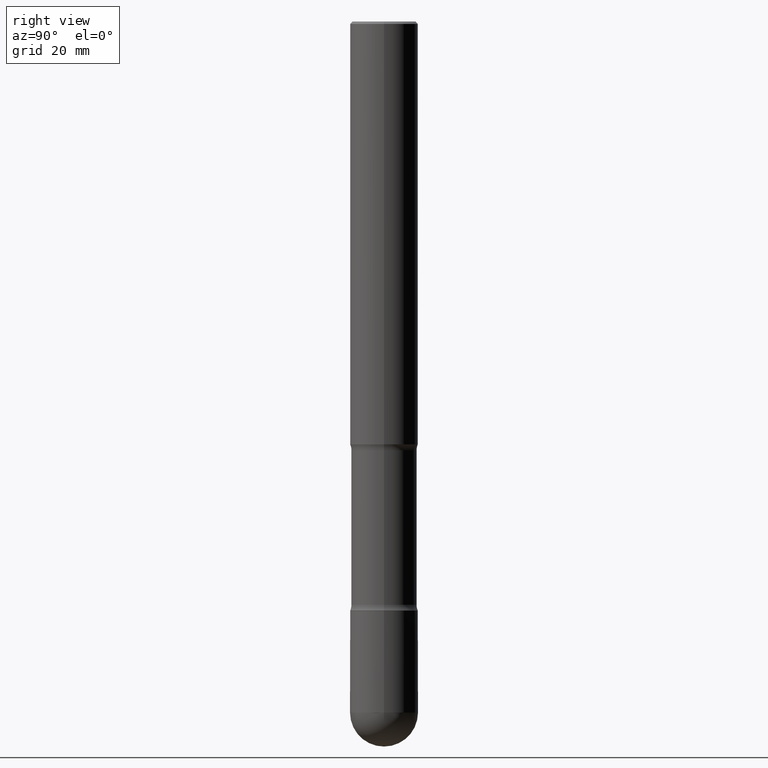
[diagram: clean part render]
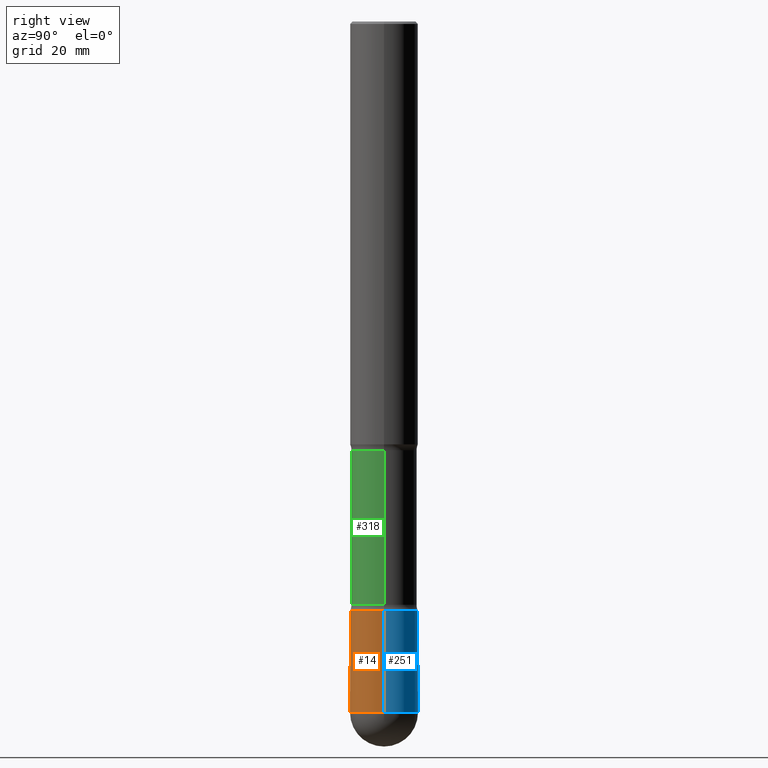
[diagram: same view with three faces highlighted in distinct colors, each labeled with its STEP entity id]
A machine part, right view with three faces highlighted in distinct colors.
Their STEP definitions:

[orange] entity #14 — the highlighted cylindrical surface (edge-blend (fillet) strip) has radius 7.1437 mm, axis along (-0, 0, 1).
#8 = ORIENTED_EDGE ( 'NONE', *, *, #363, .F. ) ;
#14 = ADVANCED_FACE ( 'NONE', ( #508 ), #115, .T. ) ;
#45 = CARTESIAN_POINT ( 'NONE',  ( 0.2812499999999991118, -1.898492977995959205E-14, -4.875000000000000888 ) ) ;
#75 = DIRECTION ( 'NONE',  ( 1.000000000000000000, -6.982962677686267499E-15, 4.876176775795935232E-29 ) ) ;
#77 = CARTESIAN_POINT ( 'NONE',  ( -0.2812499999999991673, -1.649553877235951378E-14, -4.875000000000000888 ) ) ;
#82 = CARTESIAN_POINT ( 'NONE',  ( 0.2812499999999989453, -2.045789846978405097E-14, -5.718750000000000000 ) ) ;
#95 = CARTESIAN_POINT ( 'NONE',  ( 1.192166043015254315E-28, -1.702097152686033664E-14, -4.875000000000000888 ) ) ;
#105 = VECTOR ( 'NONE', #163, 39.37007874015748143 ) ;
#115 = CYLINDRICAL_SURFACE ( 'NONE', #531, 0.2812499999999990008 ) ;
#116 = CARTESIAN_POINT ( 'NONE',  ( 1.398502473537124991E-28, -1.996690890650924185E-14, -5.718750000000000000 ) ) ;
#127 = EDGE_LOOP ( 'NONE', ( #8, #441, #555, #348, #498 ) ) ;
#145 = VERTEX_POINT ( 'NONE', #207 ) ;
#154 = CARTESIAN_POINT ( 'NONE',  ( 1.398502473537124991E-28, -1.996690890650924185E-14, -5.718750000000000000 ) ) ;
#158 = VERTEX_POINT ( 'NONE', #45 ) ;
#163 = DIRECTION ( 'NONE',  ( -2.445468806185136877E-29, 3.491481338843145188E-15, 1.000000000000000000 ) ) ;
#171 = AXIS2_PLACEMENT_3D ( 'NONE', #154, #514, #500 ) ;
#206 = CARTESIAN_POINT ( 'NONE',  ( -0.2812499999999990008, 1.998401444325274673E-15, -1.383450494134187504E-29 ) ) ;
#207 = CARTESIAN_POINT ( 'NONE',  ( -0.2812499999999989453, -1.649553877235951694E-14, -5.718750000000000000 ) ) ;
#221 = VERTEX_POINT ( 'NONE', #77 ) ;
#246 = CARTESIAN_POINT ( 'NONE',  ( -1.998401444325134650E-15, -0.2812500000000189848, -5.718749999999999112 ) ) ;
#253 = CARTESIAN_POINT ( 'NONE',  ( 0.2812499999999990008, -1.963958253099255807E-15, 1.371424718192601967E-29 ) ) ;
#267 = AXIS2_PLACEMENT_3D ( 'NONE', #95, #481, #306 ) ;
#279 = CARTESIAN_POINT ( 'NONE',  ( 0.000000000000000000, 0.000000000000000000, 0.000000000000000000 ) ) ;
#289 = DIRECTION ( 'NONE',  ( -2.445468806185136597E-29, 3.491481338843145583E-15, 1.000000000000000000 ) ) ;
#298 = CIRCLE ( 'NONE', #526, 0.2812499999999989453 ) ;
#300 = EDGE_CURVE ( 'NONE', #366, #401, #450, .T. ) ;
#303 = EDGE_CURVE ( 'NONE', #145, #366, #298, .T. ) ;
#306 = DIRECTION ( 'NONE',  ( 1.000000000000000000, -6.982962677686265133E-15, 0.000000000000000000 ) ) ;
#348 = ORIENTED_EDGE ( 'NONE', *, *, #404, .T. ) ;
#363 = EDGE_CURVE ( 'NONE', #145, #221, #384, .T. ) ;
#366 = VERTEX_POINT ( 'NONE', #246 ) ;
#384 = LINE ( 'NONE', #206, #416 ) ;
#385 = DIRECTION ( 'NONE',  ( -2.445468806185136877E-29, 3.491481338843145188E-15, 1.000000000000000000 ) ) ;
#401 = VERTEX_POINT ( 'NONE', #82 ) ;
#404 = EDGE_CURVE ( 'NONE', #401, #158, #478, .T. ) ;
#416 = VECTOR ( 'NONE', #385, 39.37007874015748143 ) ;
#441 = ORIENTED_EDGE ( 'NONE', *, *, #303, .T. ) ;
#450 = CIRCLE ( 'NONE', #171, 0.2812499999999989453 ) ;
#455 = DIRECTION ( 'NONE',  ( -2.445468806185136597E-29, 3.491481338843145583E-15, 1.000000000000000000 ) ) ;
#463 = DIRECTION ( 'NONE',  ( 1.000000000000000000, -6.982962677686261977E-15, 0.000000000000000000 ) ) ;
#478 = LINE ( 'NONE', #253, #105 ) ;
#481 = DIRECTION ( 'NONE',  ( -2.445468806185136597E-29, 3.491481338843145583E-15, 1.000000000000000000 ) ) ;
#498 = ORIENTED_EDGE ( 'NONE', *, *, #507, .F. ) ;
#500 = DIRECTION ( 'NONE',  ( 1.000000000000000000, -6.982962677686261977E-15, 0.000000000000000000 ) ) ;
#507 = EDGE_CURVE ( 'NONE', #221, #158, #516, .T. ) ;
#508 = FACE_OUTER_BOUND ( 'NONE', #127, .T. ) ;
#514 = DIRECTION ( 'NONE',  ( -2.445468806185136597E-29, 3.491481338843145583E-15, 1.000000000000000000 ) ) ;
#516 = CIRCLE ( 'NONE', #267, 0.2812499999999991118 ) ;
#526 = AXIS2_PLACEMENT_3D ( 'NONE', #116, #289, #463 ) ;
#531 = AXIS2_PLACEMENT_3D ( 'NONE', #279, #455, #75 ) ;
#555 = ORIENTED_EDGE ( 'NONE', *, *, #300, .T. ) ;

[blue] entity #251 — the highlighted cylindrical surface (edge-blend (fillet) strip) has radius 7.1437 mm, axis along (-0, 0, 1).
#22 = ORIENTED_EDGE ( 'NONE', *, *, #404, .F. ) ;
#45 = CARTESIAN_POINT ( 'NONE',  ( 0.2812499999999991118, -1.898492977995959205E-14, -4.875000000000000888 ) ) ;
#51 = DIRECTION ( 'NONE',  ( 1.000000000000000000, -6.982962677686261977E-15, 0.000000000000000000 ) ) ;
#56 = CARTESIAN_POINT ( 'NONE',  ( 1.963958253099395041E-15, 0.2812499999999790168, -5.718750000000001776 ) ) ;
#73 = CIRCLE ( 'NONE', #335, 0.2812499999999991118 ) ;
#77 = CARTESIAN_POINT ( 'NONE',  ( -0.2812499999999991673, -1.649553877235951378E-14, -4.875000000000000888 ) ) ;
#82 = CARTESIAN_POINT ( 'NONE',  ( 0.2812499999999989453, -2.045789846978405097E-14, -5.718750000000000000 ) ) ;
#86 = ORIENTED_EDGE ( 'NONE', *, *, #330, .T. ) ;
#105 = VECTOR ( 'NONE', #163, 39.37007874015748143 ) ;
#121 = DIRECTION ( 'NONE',  ( -2.445468806185136597E-29, 3.491481338843145583E-15, 1.000000000000000000 ) ) ;
#142 = ORIENTED_EDGE ( 'NONE', *, *, #363, .T. ) ;
#145 = VERTEX_POINT ( 'NONE', #207 ) ;
#150 = CARTESIAN_POINT ( 'NONE',  ( 0.000000000000000000, 0.000000000000000000, 0.000000000000000000 ) ) ;
#158 = VERTEX_POINT ( 'NONE', #45 ) ;
#163 = DIRECTION ( 'NONE',  ( -2.445468806185136877E-29, 3.491481338843145188E-15, 1.000000000000000000 ) ) ;
#201 = EDGE_CURVE ( 'NONE', #158, #221, #73, .T. ) ;
#206 = CARTESIAN_POINT ( 'NONE',  ( -0.2812499999999990008, 1.998401444325274673E-15, -1.383450494134187504E-29 ) ) ;
#207 = CARTESIAN_POINT ( 'NONE',  ( -0.2812499999999989453, -1.649553877235951694E-14, -5.718750000000000000 ) ) ;
#217 = ORIENTED_EDGE ( 'NONE', *, *, #201, .F. ) ;
#221 = VERTEX_POINT ( 'NONE', #77 ) ;
#222 = CIRCLE ( 'NONE', #491, 0.2812499999999989453 ) ;
#223 = ORIENTED_EDGE ( 'NONE', *, *, #536, .T. ) ;
#241 = DIRECTION ( 'NONE',  ( 1.000000000000000000, -6.982962677686267499E-15, 4.876176775795935232E-29 ) ) ;
#247 = DIRECTION ( 'NONE',  ( 1.000000000000000000, -6.982962677686261977E-15, 0.000000000000000000 ) ) ;
#251 = ADVANCED_FACE ( 'NONE', ( #368 ), #551, .T. ) ;
#253 = CARTESIAN_POINT ( 'NONE',  ( 0.2812499999999990008, -1.963958253099255807E-15, 1.371424718192601967E-29 ) ) ;
#257 = CARTESIAN_POINT ( 'NONE',  ( 1.398502473537124991E-28, -1.996690890650924185E-14, -5.718750000000000000 ) ) ;
#296 = DIRECTION ( 'NONE',  ( 1.000000000000000000, -6.982962677686265133E-15, 0.000000000000000000 ) ) ;
#330 = EDGE_CURVE ( 'NONE', #401, #446, #222, .T. ) ;
#335 = AXIS2_PLACEMENT_3D ( 'NONE', #566, #474, #296 ) ;
#363 = EDGE_CURVE ( 'NONE', #145, #221, #384, .T. ) ;
#368 = FACE_OUTER_BOUND ( 'NONE', #405, .T. ) ;
#384 = LINE ( 'NONE', #206, #416 ) ;
#385 = DIRECTION ( 'NONE',  ( -2.445468806185136877E-29, 3.491481338843145188E-15, 1.000000000000000000 ) ) ;
#401 = VERTEX_POINT ( 'NONE', #82 ) ;
#404 = EDGE_CURVE ( 'NONE', #401, #158, #478, .T. ) ;
#405 = EDGE_LOOP ( 'NONE', ( #223, #142, #217, #22, #86 ) ) ;
#416 = VECTOR ( 'NONE', #385, 39.37007874015748143 ) ;
#427 = CARTESIAN_POINT ( 'NONE',  ( 1.398502473537124991E-28, -1.996690890650924185E-14, -5.718750000000000000 ) ) ;
#436 = DIRECTION ( 'NONE',  ( -2.445468806185136597E-29, 3.491481338843145583E-15, 1.000000000000000000 ) ) ;
#446 = VERTEX_POINT ( 'NONE', #56 ) ;
#462 = CIRCLE ( 'NONE', #543, 0.2812499999999989453 ) ;
#474 = DIRECTION ( 'NONE',  ( -2.445468806185136597E-29, 3.491481338843145583E-15, 1.000000000000000000 ) ) ;
#478 = LINE ( 'NONE', #253, #105 ) ;
#491 = AXIS2_PLACEMENT_3D ( 'NONE', #427, #121, #247 ) ;
#511 = DIRECTION ( 'NONE',  ( -2.445468806185136597E-29, 3.491481338843145583E-15, 1.000000000000000000 ) ) ;
#536 = EDGE_CURVE ( 'NONE', #446, #145, #462, .T. ) ;
#543 = AXIS2_PLACEMENT_3D ( 'NONE', #257, #436, #51 ) ;
#551 = CYLINDRICAL_SURFACE ( 'NONE', #561, 0.2812499999999990008 ) ;
#561 = AXIS2_PLACEMENT_3D ( 'NONE', #150, #511, #241 ) ;
#566 = CARTESIAN_POINT ( 'NONE',  ( 1.192166043015254315E-28, -1.702097152686033664E-14, -4.875000000000000888 ) ) ;

[green] entity #318 — the highlighted cylindrical surface (edge-blend (fillet) strip) has radius 6.8961 mm, axis along (0, -0, -1).
#1 = VERTEX_POINT ( 'NONE', #242 ) ;
#36 = DIRECTION ( 'NONE',  ( 2.445468806185136597E-29, -3.491481338843145583E-15, -1.000000000000000000 ) ) ;
#42 = EDGE_CURVE ( 'NONE', #99, #533, #119, .T. ) ;
#49 = DIRECTION ( 'NONE',  ( 2.445468806185136597E-29, -3.491481338843145583E-15, -1.000000000000000000 ) ) ;
#61 = DIRECTION ( 'NONE',  ( -1.000000000000000000, 6.982962677686265133E-15, 0.000000000000000000 ) ) ;
#74 = FACE_OUTER_BOUND ( 'NONE', #166, .T. ) ;
#79 = VECTOR ( 'NONE', #131, 39.37007874015748143 ) ;
#99 = VERTEX_POINT ( 'NONE', #284 ) ;
#109 = ORIENTED_EDGE ( 'NONE', *, *, #383, .T. ) ;
#119 = CIRCLE ( 'NONE', #431, 0.2714999999999994640 ) ;
#120 = CIRCLE ( 'NONE', #290, 0.2714999999999992975 ) ;
#131 = DIRECTION ( 'NONE',  ( 2.445468806185136877E-29, -3.491481338843145188E-15, -1.000000000000000000 ) ) ;
#153 = DIRECTION ( 'NONE',  ( 2.445468806185136597E-29, -3.491481338843145583E-15, -1.000000000000000000 ) ) ;
#165 = CARTESIAN_POINT ( 'NONE',  ( 0.2714999999999993530, -1.888359673325530554E-14, -4.875000000000000888 ) ) ;
#166 = EDGE_LOOP ( 'NONE', ( #357, #403, #109, #268 ) ) ;
#172 = LINE ( 'NONE', #165, #372 ) ;
#189 = DIRECTION ( 'NONE',  ( -1.000000000000000000, 6.982962677686269077E-15, 0.000000000000000000 ) ) ;
#202 = DIRECTION ( 'NONE',  ( 2.445468806185136877E-29, -3.491481338843145188E-15, -1.000000000000000000 ) ) ;
#208 = CARTESIAN_POINT ( 'NONE',  ( -0.2714999999999993530, -1.512509715986852223E-14, -4.875000000000000888 ) ) ;
#214 = DIRECTION ( 'NONE',  ( -1.000000000000000000, 6.982962677686265922E-15, 0.000000000000000000 ) ) ;
#242 = CARTESIAN_POINT ( 'NONE',  ( -0.2714999999999992975, -1.049329359724623164E-14, -3.548398734487588246 ) ) ;
#244 = CYLINDRICAL_SURFACE ( 'NONE', #532, 0.2714999999999993530 ) ;
#268 = ORIENTED_EDGE ( 'NONE', *, *, #42, .F. ) ;
#275 = CARTESIAN_POINT ( 'NONE',  ( 0.2714999999999992975, -1.420074645922863614E-14, -3.548398734487588246 ) ) ;
#284 = CARTESIAN_POINT ( 'NONE',  ( 0.2714999999999995195, -1.648320331280064110E-14, -4.826601265512413086 ) ) ;
#290 = AXIS2_PLACEMENT_3D ( 'NONE', #429, #49, #214 ) ;
#318 = ADVANCED_FACE ( 'NONE', ( #74 ), #244, .T. ) ;
#347 = LINE ( 'NONE', #208, #79 ) ;
#357 = ORIENTED_EDGE ( 'NONE', *, *, #386, .F. ) ;
#372 = VECTOR ( 'NONE', #202, 39.37007874015748143 ) ;
#376 = CARTESIAN_POINT ( 'NONE',  ( 1.180330283470431069E-28, -1.685198824857329994E-14, -4.826601265512413086 ) ) ;
#383 = EDGE_CURVE ( 'NONE', #1, #533, #347, .T. ) ;
#386 = EDGE_CURVE ( 'NONE', #545, #99, #172, .T. ) ;
#403 = ORIENTED_EDGE ( 'NONE', *, *, #417, .T. ) ;
#417 = EDGE_CURVE ( 'NONE', #545, #1, #120, .T. ) ;
#420 = CARTESIAN_POINT ( 'NONE',  ( 1.192166043015254315E-28, -1.702097152686033664E-14, -4.875000000000000888 ) ) ;
#429 = CARTESIAN_POINT ( 'NONE',  ( 8.677498417096211671E-29, -1.238916796423804762E-14, -3.548398734487588246 ) ) ;
#431 = AXIS2_PLACEMENT_3D ( 'NONE', #376, #153, #189 ) ;
#477 = CARTESIAN_POINT ( 'NONE',  ( -0.2714999999999994640, -1.495611388158148237E-14, -4.826601265512413086 ) ) ;
#532 = AXIS2_PLACEMENT_3D ( 'NONE', #420, #36, #61 ) ;
#533 = VERTEX_POINT ( 'NONE', #477 ) ;
#545 = VERTEX_POINT ( 'NONE', #275 ) ;